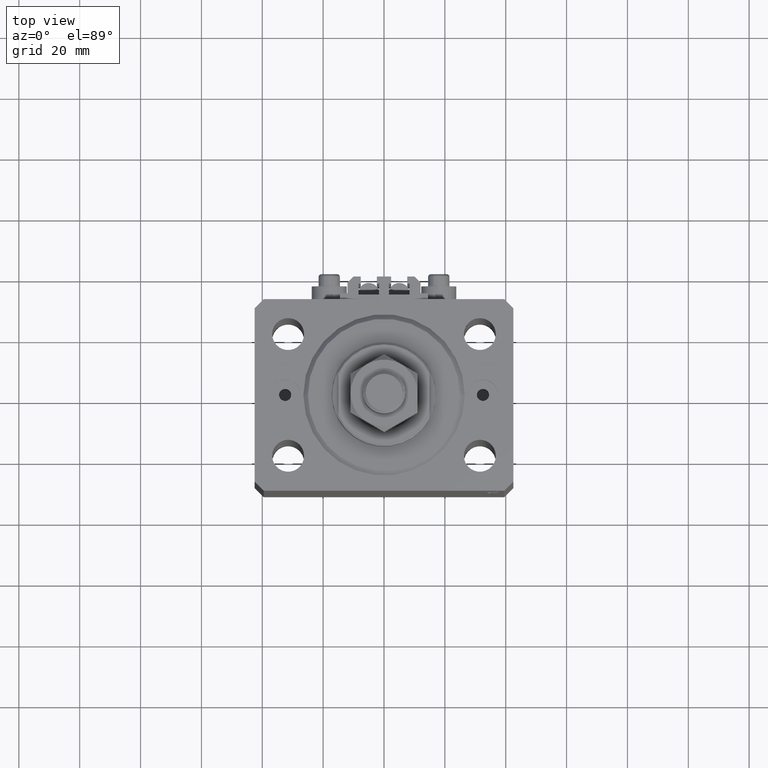
[diagram: clean part render]
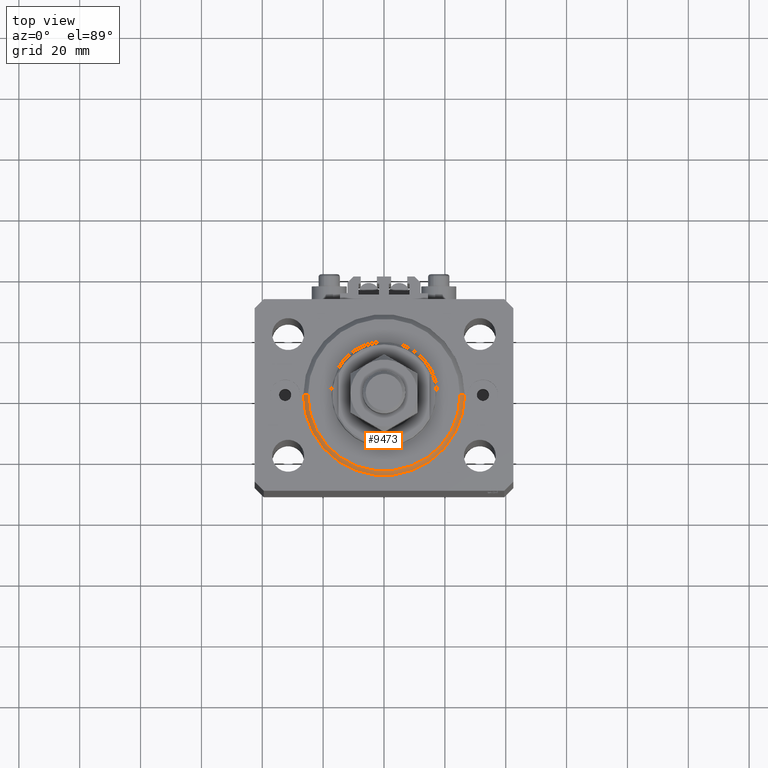
[diagram: same view with one face highlighted and labeled with its STEP entity id]
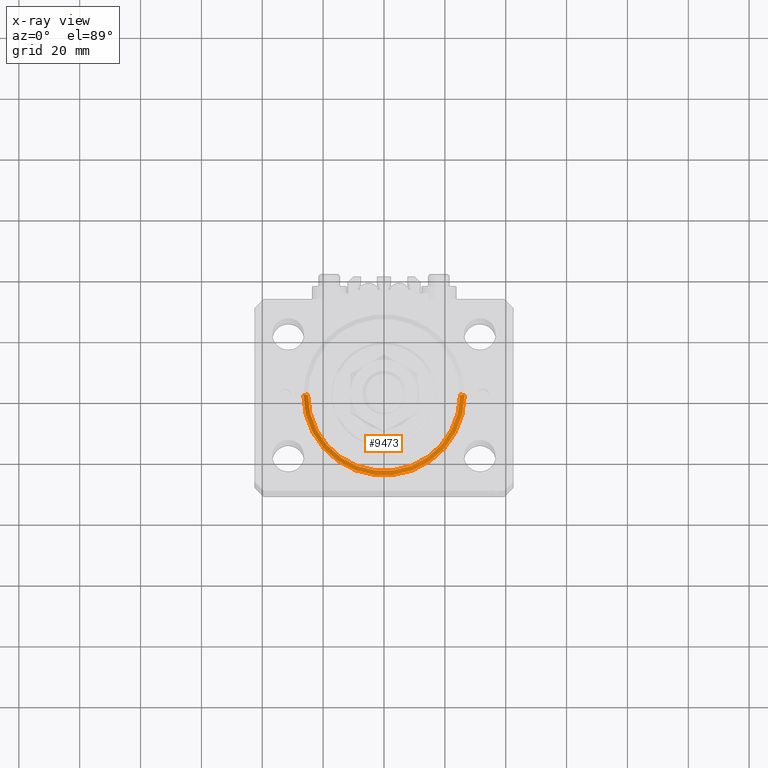
[diagram: x-ray of the same camera — body ghosted, the highlighted face saturated]
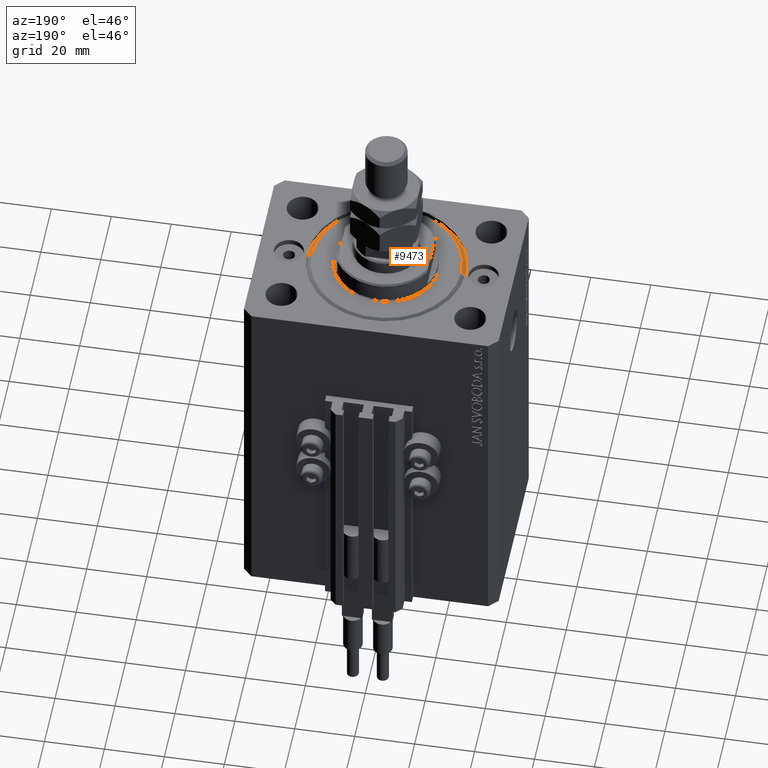
[diagram: same view with one face highlighted and labeled with its STEP entity id]
A machine part, top view. The second image highlights one B-rep face of the part: STEP entity #9473.
The next image is the same camera in x-ray: the body ghosted, the highlighted face saturated — about 0% of this face is hidden behind the body in this view.
A second angle (auxiliary view) of the same face is appended — the face is thin or edge-on in the first view.
In plain terms, the highlighted conical surface has half-angle 45 deg.
Its self-contained STEP definition (entity closure, byte-faithful):
#301 = CARTESIAN_POINT ( 'NONE',  ( -26.50000000000000355, 0.000000000000000000, 1.500000000000018652 ) ) ;
#838 = VECTOR ( 'NONE', #25349, 1000.000000000000000 ) ;
#2531 = VERTEX_POINT ( 'NONE', #17868 ) ;
#4344 = AXIS2_PLACEMENT_3D ( 'NONE', #8429, #23735, #47529 ) ;
#7771 = CARTESIAN_POINT ( 'NONE',  ( 0.000000000000000000, 0.000000000000000000, 1.500000000000018652 ) ) ;
#8041 = EDGE_CURVE ( 'NONE', #27456, #31083, #12340, .T. ) ;
#8429 = CARTESIAN_POINT ( 'NONE',  ( 0.000000000000000000, 0.000000000000000000, 0.000000000000000000 ) ) ;
#8706 = VECTOR ( 'NONE', #20110, 1000.000000000000000 ) ;
#9473 = ADVANCED_FACE ( 'NONE', ( #29798 ), #13580, .T. ) ;
#10062 = CARTESIAN_POINT ( 'NONE',  ( -26.50000000000000355, 3.245314017740486554E-15, 1.500000000000018652 ) ) ;
#11786 = DIRECTION ( 'NONE',  ( 1.000000000000000000, 0.000000000000000000, 0.000000000000000000 ) ) ;
#12138 = AXIS2_PLACEMENT_3D ( 'NONE', #7771, #30834, #11786 ) ;
#12340 = LINE ( 'NONE', #47424, #8706 ) ;
#13257 = ORIENTED_EDGE ( 'NONE', *, *, #39913, .F. ) ;
#13580 = CONICAL_SURFACE ( 'NONE', #40804, 26.50000000000000355, 0.7853981633974495002 ) ;
#14757 = ORIENTED_EDGE ( 'NONE', *, *, #8041, .T. ) ;
#17312 = CARTESIAN_POINT ( 'NONE',  ( 24.99999999999998224, 0.000000000000000000, 0.000000000000000000 ) ) ;
#17868 = CARTESIAN_POINT ( 'NONE',  ( -24.99999999999998224, 3.153465507804433615E-15, 0.000000000000000000 ) ) ;
#20110 = DIRECTION ( 'NONE',  ( 0.7071067811865483499, 0.000000000000000000, 0.7071067811865466846 ) ) ;
#22674 = EDGE_CURVE ( 'NONE', #2531, #24343, #41150, .T. ) ;
#23735 = DIRECTION ( 'NONE',  ( -0.000000000000000000, -0.000000000000000000, -1.000000000000000000 ) ) ;
#24343 = VERTEX_POINT ( 'NONE', #301 ) ;
#25057 = EDGE_LOOP ( 'NONE', ( #43168, #13257, #14757, #37325 ) ) ;
#25349 = DIRECTION ( 'NONE',  ( -0.7071067811865483499, 8.659560562354942719E-17, 0.7071067811865466846 ) ) ;
#27456 = VERTEX_POINT ( 'NONE', #17312 ) ;
#29255 = EDGE_CURVE ( 'NONE', #24343, #31083, #41776, .T. ) ;
#29798 = FACE_OUTER_BOUND ( 'NONE', #25057, .T. ) ;
#30571 = CARTESIAN_POINT ( 'NONE',  ( 26.50000000000000355, 3.245314017740486554E-15, 1.500000000000018652 ) ) ;
#30834 = DIRECTION ( 'NONE',  ( -0.000000000000000000, -0.000000000000000000, 1.000000000000000000 ) ) ;
#31083 = VERTEX_POINT ( 'NONE', #30571 ) ;
#33170 = CIRCLE ( 'NONE', #4344, 24.99999999999998224 ) ;
#37325 = ORIENTED_EDGE ( 'NONE', *, *, #29255, .F. ) ;
#39662 = DIRECTION ( 'NONE',  ( -0.000000000000000000, -0.000000000000000000, 1.000000000000000000 ) ) ;
#39913 = EDGE_CURVE ( 'NONE', #27456, #2531, #33170, .T. ) ;
#40804 = AXIS2_PLACEMENT_3D ( 'NONE', #45101, #39662, #47182 ) ;
#41150 = LINE ( 'NONE', #10062, #838 ) ;
#41776 = CIRCLE ( 'NONE', #12138, 26.50000000000000355 ) ;
#43168 = ORIENTED_EDGE ( 'NONE', *, *, #22674, .F. ) ;
#45101 = CARTESIAN_POINT ( 'NONE',  ( 0.000000000000000000, 0.000000000000000000, 1.500000000000018652 ) ) ;
#47182 = DIRECTION ( 'NONE',  ( 1.000000000000000000, 0.000000000000000000, 0.000000000000000000 ) ) ;
#47424 = CARTESIAN_POINT ( 'NONE',  ( 26.50000000000000355, 0.000000000000000000, 1.500000000000018652 ) ) ;
#47529 = DIRECTION ( 'NONE',  ( 1.000000000000000000, 0.000000000000000000, 0.000000000000000000 ) ) ;